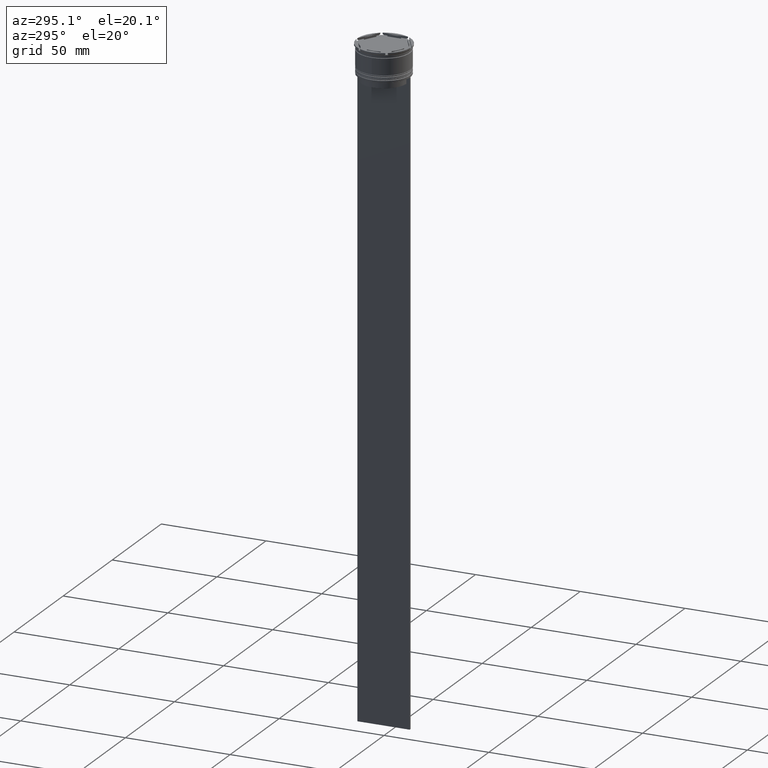
[diagram: clean part render]
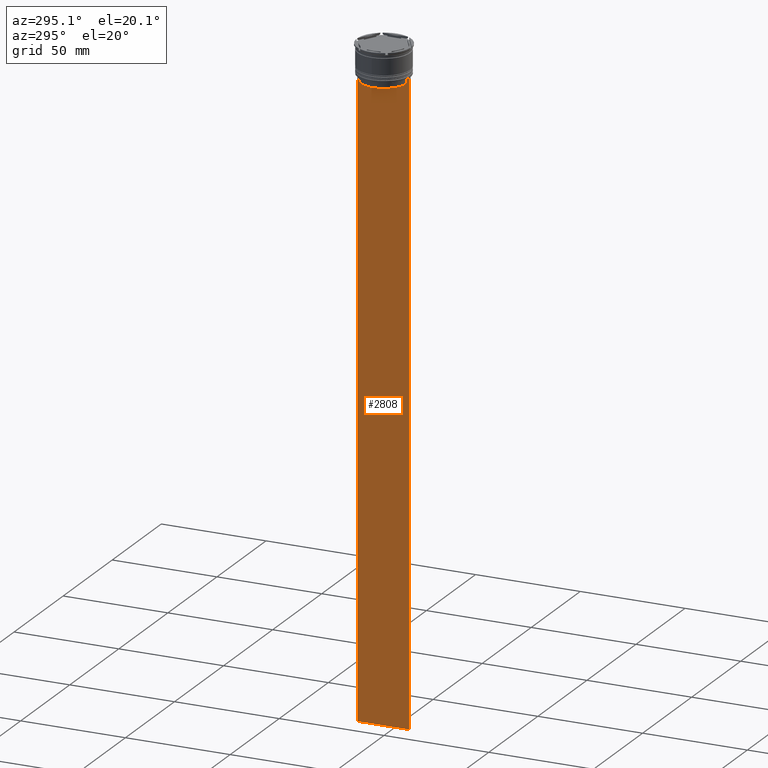
[diagram: same view with one face highlighted and labeled with its STEP entity id]
A machine part, auxiliary view. The second image highlights one B-rep face of the part: STEP entity #2808.
In plain terms, the highlighted planar face has unit normal (-1, 0, 0).
Its self-contained STEP definition (entity closure, byte-faithful):
#1 = CARTESIAN_POINT ( 'NONE',  ( -0.5000000000000000000, -11.38902980942626719, -14.00000000000000178 ) ) ;
#47 = DIRECTION ( 'NONE',  ( 0.000000000000000000, -1.000000000000000000, 0.000000000000000000 ) ) ;
#62 = CARTESIAN_POINT ( 'NONE',  ( -0.5000000000000000000, 11.22219891375843304, -14.16667035472756808 ) ) ;
#65 = VERTEX_POINT ( 'NONE', #2755 ) ;
#71 = VECTOR ( 'NONE', #812, 1000.000000000000000 ) ;
#86 = ORIENTED_EDGE ( 'NONE', *, *, #2055, .F. ) ;
#152 = LINE ( 'NONE', #1019, #1615 ) ;
#175 = CARTESIAN_POINT ( 'NONE',  ( -0.5000000000000000000, -12.49999999999999289, -14.00000000000000178 ) ) ;
#186 = VERTEX_POINT ( 'NONE', #2219 ) ;
#197 = EDGE_CURVE ( 'NONE', #1097, #65, #1512, .T. ) ;
#202 = CARTESIAN_POINT ( 'NONE',  ( -0.5000000000000000000, -11.22219891450652973, -14.16667035398018903 ) ) ;
#270 = CARTESIAN_POINT ( 'NONE',  ( -0.5000000000000000000, 11.38902980942626719, -14.00000000000000178 ) ) ;
#279 = EDGE_CURVE ( 'NONE', #339, #1097, #2497, .T. ) ;
#307 = CARTESIAN_POINT ( 'NONE',  ( -0.5000000000000000000, -12.49999999999999289, -314.0000000000000000 ) ) ;
#339 = VERTEX_POINT ( 'NONE', #493 ) ;
#356 = ORIENTED_EDGE ( 'NONE', *, *, #1223, .F. ) ;
#426 = CARTESIAN_POINT ( 'NONE',  ( -0.5000000000000000000, -12.49999999999999289, -14.00000000000000178 ) ) ;
#456 = ORIENTED_EDGE ( 'NONE', *, *, #279, .F. ) ;
#477 = CARTESIAN_POINT ( 'NONE',  ( -0.5000000000000000000, 10.88852607105296322, -14.50000000000000000 ) ) ;
#493 = CARTESIAN_POINT ( 'NONE',  ( -0.5000000000000000000, 11.38902980942626719, -14.00000000000000178 ) ) ;
#530 = DIRECTION ( 'NONE',  ( 0.000000000000000000, 0.000000000000000000, -1.000000000000000000 ) ) ;
#537 = VECTOR ( 'NONE', #549, 1000.000000000000000 ) ;
#549 = DIRECTION ( 'NONE',  ( 0.000000000000000000, -1.000000000000000000, 0.000000000000000000 ) ) ;
#592 = CARTESIAN_POINT ( 'NONE',  ( -0.5000000000000000000, 12.50000000000000711, -14.00000000000000178 ) ) ;
#619 = DIRECTION ( 'NONE',  ( 0.000000000000000000, 0.000000000000000000, 1.000000000000000000 ) ) ;
#626 = CARTESIAN_POINT ( 'NONE',  ( -0.5000000000000000000, 10.88852607105296322, 0.000000000000000000 ) ) ;
#699 = EDGE_CURVE ( 'NONE', #1635, #2135, #1714, .T. ) ;
#712 = ORIENTED_EDGE ( 'NONE', *, *, #1261, .F. ) ;
#719 = VECTOR ( 'NONE', #1305, 1000.000000000000000 ) ;
#766 = CARTESIAN_POINT ( 'NONE',  ( -0.5000000000000000000, -12.49999999999999289, -14.00000000000000178 ) ) ;
#786 = VERTEX_POINT ( 'NONE', #1553 ) ;
#812 = DIRECTION ( 'NONE',  ( 0.000000000000000000, -1.000000000000000000, 0.000000000000000000 ) ) ;
#894 = LINE ( 'NONE', #426, #2501 ) ;
#919 = DIRECTION ( 'NONE',  ( 0.000000000000000000, 0.000000000000000000, -1.000000000000000000 ) ) ;
#932 = EDGE_CURVE ( 'NONE', #786, #2873, #1667, .T. ) ;
#941 = EDGE_CURVE ( 'NONE', #2469, #2468, #1866, .T. ) ;
#944 = CARTESIAN_POINT ( 'NONE',  ( -0.5000000000000000000, 11.05536450345590538, -14.33333719074559376 ) ) ;
#1019 = CARTESIAN_POINT ( 'NONE',  ( -0.5000000000000000000, -10.88852607105296322, 0.000000000000000000 ) ) ;
#1036 = CARTESIAN_POINT ( 'NONE',  ( -0.5000000000000000000, -10.88852607105296322, -14.50000000000000000 ) ) ;
#1044 = ORIENTED_EDGE ( 'NONE', *, *, #941, .F. ) ;
#1093 = DIRECTION ( 'NONE',  ( 0.000000000000000000, -1.000000000000000000, 0.000000000000000000 ) ) ;
#1095 = VECTOR ( 'NONE', #47, 1000.000000000000000 ) ;
#1097 = VERTEX_POINT ( 'NONE', #477 ) ;
#1223 = EDGE_CURVE ( 'NONE', #2468, #786, #2165, .T. ) ;
#1254 = CARTESIAN_POINT ( 'NONE',  ( -0.5000000000000000000, 12.50000000000000711, 11.01999200639360765 ) ) ;
#1261 = EDGE_CURVE ( 'NONE', #1980, #2469, #1490, .T. ) ;
#1305 = DIRECTION ( 'NONE',  ( 0.000000000000000000, 0.000000000000000000, -1.000000000000000000 ) ) ;
#1437 = ORIENTED_EDGE ( 'NONE', *, *, #197, .F. ) ;
#1460 = EDGE_CURVE ( 'NONE', #65, #2341, #2293, .T. ) ;
#1469 = ORIENTED_EDGE ( 'NONE', *, *, #2848, .F. ) ;
#1490 = B_SPLINE_CURVE_WITH_KNOTS ( 'NONE', 3,
 ( #2425, #2841, #202, #1 ),
 .UNSPECIFIED., .F., .F.,
 ( 4, 4 ),
 ( 0.05041323384703226551, 0.05112713601261605068 ),
 .UNSPECIFIED. ) ;
#1512 = LINE ( 'NONE', #626, #719 ) ;
#1553 = CARTESIAN_POINT ( 'NONE',  ( -0.5000000000000000000, -12.49999999999999289, -14.00000000000000178 ) ) ;
#1574 = ORIENTED_EDGE ( 'NONE', *, *, #932, .F. ) ;
#1576 = CARTESIAN_POINT ( 'NONE',  ( -0.5000000000000000000, -11.38902980942626719, -14.00000000000000178 ) ) ;
#1597 = ORIENTED_EDGE ( 'NONE', *, *, #1460, .F. ) ;
#1615 = VECTOR ( 'NONE', #1922, 1000.000000000000000 ) ;
#1635 = VERTEX_POINT ( 'NONE', #592 ) ;
#1667 = LINE ( 'NONE', #1902, #1746 ) ;
#1683 = DIRECTION ( 'NONE',  ( 0.000000000000000000, -1.000000000000000000, 0.000000000000000000 ) ) ;
#1714 = LINE ( 'NONE', #2814, #71 ) ;
#1723 = DIRECTION ( 'NONE',  ( -1.000000000000000000, 0.000000000000000000, 0.000000000000000000 ) ) ;
#1746 = VECTOR ( 'NONE', #530, 1000.000000000000000 ) ;
#1772 = ORIENTED_EDGE ( 'NONE', *, *, #1880, .T. ) ;
#1866 = LINE ( 'NONE', #766, #537 ) ;
#1880 = EDGE_CURVE ( 'NONE', #1635, #186, #2602, .T. ) ;
#1902 = CARTESIAN_POINT ( 'NONE',  ( -0.5000000000000000000, -12.49999999999999289, 11.01999200639360765 ) ) ;
#1922 = DIRECTION ( 'NONE',  ( -0.000000000000000000, -0.000000000000000000, 1.000000000000000000 ) ) ;
#1949 = FACE_OUTER_BOUND ( 'NONE', #2622, .T. ) ;
#1973 = ORIENTED_EDGE ( 'NONE', *, *, #699, .F. ) ;
#1980 = VERTEX_POINT ( 'NONE', #1036 ) ;
#2026 = CARTESIAN_POINT ( 'NONE',  ( -0.5000000000000000000, -12.38991525394746773, -14.00000000000000178 ) ) ;
#2038 = CARTESIAN_POINT ( 'NONE',  ( -0.5000000000000000000, 10.90000000000000213, -17.00000000000000000 ) ) ;
#2055 = EDGE_CURVE ( 'NONE', #2873, #186, #2478, .T. ) ;
#2081 = AXIS2_PLACEMENT_3D ( 'NONE', #2842, #1723, #619 ) ;
#2128 = VECTOR ( 'NONE', #919, 1000.000000000000000 ) ;
#2135 = VERTEX_POINT ( 'NONE', #2375 ) ;
#2149 = EDGE_CURVE ( 'NONE', #2341, #1980, #152, .T. ) ;
#2153 = PLANE ( 'NONE',  #2081 ) ;
#2165 = LINE ( 'NONE', #175, #2867 ) ;
#2174 = VECTOR ( 'NONE', #2516, 1000.000000000000000 ) ;
#2185 = CARTESIAN_POINT ( 'NONE',  ( -0.5000000000000000000, -10.88852607105296144, -17.00000000000000000 ) ) ;
#2219 = CARTESIAN_POINT ( 'NONE',  ( -0.5000000000000000000, 12.50000000000000711, -314.0000000000000000 ) ) ;
#2293 = LINE ( 'NONE', #2038, #1095 ) ;
#2341 = VERTEX_POINT ( 'NONE', #2185 ) ;
#2369 = ORIENTED_EDGE ( 'NONE', *, *, #2149, .F. ) ;
#2375 = CARTESIAN_POINT ( 'NONE',  ( -0.5000000000000000000, 12.38991525394746773, -14.00000000000000178 ) ) ;
#2425 = CARTESIAN_POINT ( 'NONE',  ( -0.5000000000000000000, -10.88852607105296322, -14.50000000000000000 ) ) ;
#2468 = VERTEX_POINT ( 'NONE', #2026 ) ;
#2469 = VERTEX_POINT ( 'NONE', #1576 ) ;
#2476 = CARTESIAN_POINT ( 'NONE',  ( -0.5000000000000000000, 10.88852607105296322, -14.50000000000000000 ) ) ;
#2478 = LINE ( 'NONE', #307, #2174 ) ;
#2497 = B_SPLINE_CURVE_WITH_KNOTS ( 'NONE', 3,
 ( #270, #62, #944, #2476 ),
 .UNSPECIFIED., .F., .F.,
 ( 4, 4 ),
 ( 0.01935560801904634073, 0.02006307108468586772 ),
 .UNSPECIFIED. ) ;
#2501 = VECTOR ( 'NONE', #1093, 1000.000000000000000 ) ;
#2516 = DIRECTION ( 'NONE',  ( 0.000000000000000000, 1.000000000000000000, 0.000000000000000000 ) ) ;
#2602 = LINE ( 'NONE', #1254, #2128 ) ;
#2622 = EDGE_LOOP ( 'NONE', ( #456, #1469, #1973, #1772, #86, #1574, #356, #1044, #712, #2369, #1597, #1437 ) ) ;
#2755 = CARTESIAN_POINT ( 'NONE',  ( -0.5000000000000000000, 10.88852607105296144, -17.00000000000000000 ) ) ;
#2808 = ADVANCED_FACE ( 'NONE', ( #1949 ), #2153, .T. ) ;
#2814 = CARTESIAN_POINT ( 'NONE',  ( -0.5000000000000000000, -12.49999999999999289, -14.00000000000000178 ) ) ;
#2841 = CARTESIAN_POINT ( 'NONE',  ( -0.5000000000000000000, -11.05536450423839234, -14.33333718996393102 ) ) ;
#2842 = CARTESIAN_POINT ( 'NONE',  ( -0.5000000000000000000, -12.49999999999999289, 11.01999200639360765 ) ) ;
#2848 = EDGE_CURVE ( 'NONE', #2135, #339, #894, .T. ) ;
#2861 = CARTESIAN_POINT ( 'NONE',  ( -0.5000000000000000000, -12.49999999999999289, -314.0000000000000000 ) ) ;
#2867 = VECTOR ( 'NONE', #1683, 1000.000000000000000 ) ;
#2873 = VERTEX_POINT ( 'NONE', #2861 ) ;